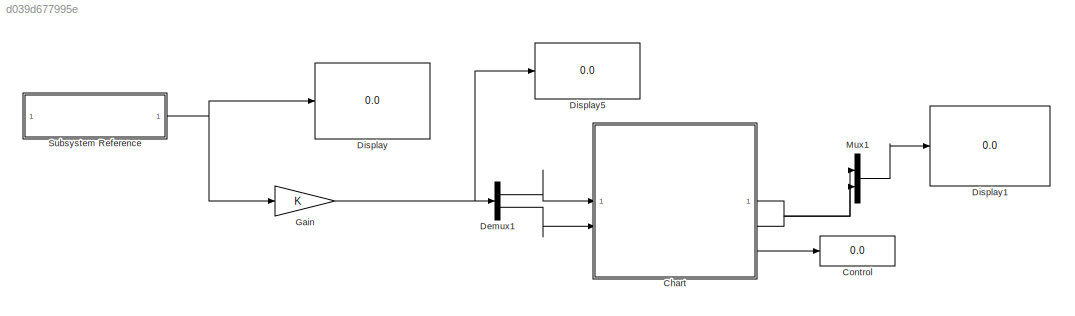
MODEL slx_d039d677995e
KIND model
CONFIG AbsTol = auto
CONFIG EnableMultiTasking = on
CONFIG FixedStep = auto
CONFIG MaxStep = auto
CONFIG MinStep = auto
CONFIG RelTol = 1e-3
CONFIG SampleTimeConstraint = Unconstrained
CONFIG SolverName = FixedStepAuto
CONFIG StartTime = 0.0
CONFIG StopTime = inf
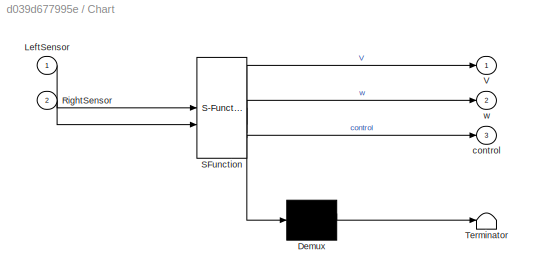
BLOCK [SubSystem] Chart
  ErrorFcn = Stateflow.Translate.translate
  PermitHierarchicalResolution = ExplicitOnly
  SFBlockType = Chart
  TreatAsAtomicUnit = on
BLOCK [Demux] Chart/ Demux 
  Outputs = 1
BLOCK [S-Function] Chart/ SFunction 
  EnableBusSupport = on
  FunctionName = sf_sfun
  PortCounts = [2 4]
  SFcnIsStateOwnerBlock = off
  SFunctionDeploymentMode = off
  Tag = Stateflow S-Function 3
BLOCK [Terminator] Chart/ Terminator 
BLOCK [Inport] Chart/LeftSensor
BLOCK [Inport] Chart/RightSensor
  Port = 2
BLOCK [Outport] Chart/V
BLOCK [Outport] Chart/control
  Port = 3
BLOCK [Outport] Chart/w
  Port = 2
BLOCK [Display] Control
  Decimation = 1
BLOCK [Demux] Demux1
  Outputs = 2
BLOCK [Display] Display
  Decimation = 1
BLOCK [Display] Display1
  Decimation = 1
BLOCK [Display] Display5
  Decimation = 1
BLOCK [Gain] Gain
BLOCK [Mux] Mux1
  DisplayOption = bar
  Inputs = 2
BLOCK [SubSystem] Subsystem Reference
  ReferencedSubsystem = Sonars
LINE Chart:1 -> Mux1:1
LINE Chart:2 -> Mux1:2
LINE Chart:3 -> Control:1
LINE Demux1:1 -> Chart:1
LINE Demux1:2 -> Chart:2
NET Gain:1 -> Demux1:1, Display5:1
LINE Mux1:1 -> Display1:1
NET Subsystem Reference:1 -> Display:1, Gain:1
note: NET lines group one-source signal fan-out (src -> all destinations, sorted); 1:1 wires keep LINE
CHART Chart states=4 transitions=8
  STATE_LABEL 'SinObstaculos\nen:\ncontrol = 0;\nV = 0.205;\nw = 1;\n'
  STATE_LABEL 'ObstaculoIzq\nen:\ncontrol = 1;\nV = 0.1;\nw = -0.5;'
  STATE_LABEL 'ObstaculoDcha\nen:\ncontrol = 1;\nV = 0.1;\nw = 0.5;'
  STATE_LABEL 'ObstaculoFrente\nen:\ncontrol = 1;\nV = 0;\nw = -1;'
CHART  states=0 transitions=0
